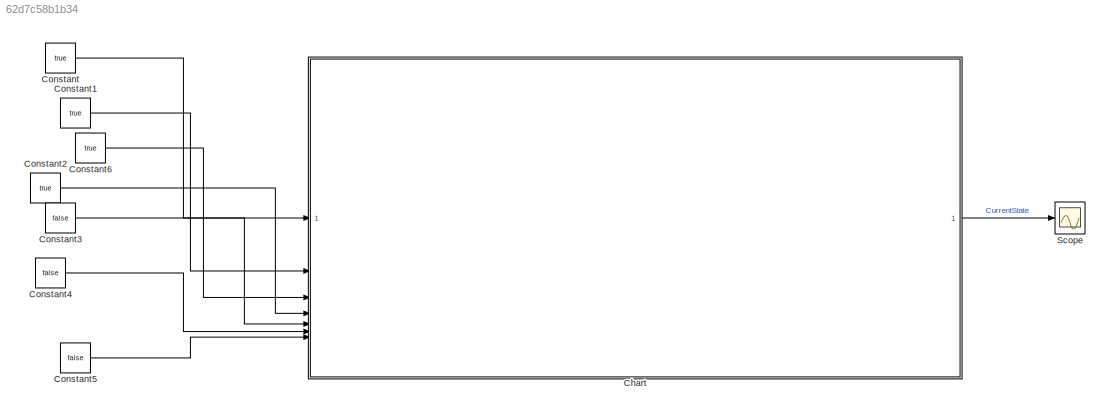
MODEL slx_62d7c58b1b34
KIND model
CONFIG AbsTol = auto
CONFIG EnableMultiTasking = off
CONFIG FixedStep = auto
CONFIG MaxStep = auto
CONFIG MinStep = auto
CONFIG RelTol = 1e-3
CONFIG SampleTimeConstraint = Unconstrained
CONFIG SolverName = VariableStepAuto
CONFIG StartTime = 0.0
CONFIG StopTime = 10.0
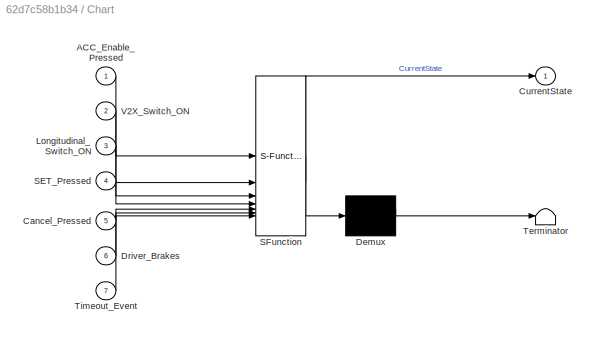
BLOCK [SubSystem] Chart
  ErrorFcn = Stateflow.Translate.translate
  PermitHierarchicalResolution = ExplicitOnly
  SFBlockType = Chart
  TreatAsAtomicUnit = on
BLOCK [Demux] Chart/ Demux 
  Outputs = 1
BLOCK [S-Function] Chart/ SFunction 
  EnableBusSupport = off
  FunctionName = sf_sfun
  PortCounts = [7 2]
  SFcnIsStateOwnerBlock = off
  SFunctionDeploymentMode = off
  Tag = Stateflow S-Function 3
BLOCK [Terminator] Chart/ Terminator 
BLOCK [Inport] Chart/ACC_Enable_Pressed
BLOCK [Inport] Chart/Cancel_Pressed
  Port = 5
BLOCK [Outport] Chart/CurrentState
BLOCK [Inport] Chart/Driver_Brakes
  Port = 6
BLOCK [Inport] Chart/Longitudinal_Switch_ON
  Port = 3
BLOCK [Inport] Chart/SET_Pressed
  Port = 4
BLOCK [Inport] Chart/Timeout_Event
  Port = 7
BLOCK [Inport] Chart/V2X_Switch_ON
  Port = 2
BLOCK [Constant] Constant
  Value = true
BLOCK [Constant] Constant1
  Value = true
BLOCK [Constant] Constant2
  Value = true
BLOCK [Constant] Constant3
  Value = false
BLOCK [Constant] Constant4
  Value = false
BLOCK [Constant] Constant5
  Value = false
BLOCK [Constant] Constant6
  Value = true
BLOCK [Scope] Scope
  Floating = off
  GraphicalSettings = {"GraphicalSettings":{"LegacySettings":true,"Style":{"Style":{"PlotType":"Auto"}}}}
  NumInputPorts = 1
  ScopeFrameLocation = window
  Visible = on
  WasSavedAsWebScope = on
  WindowPosition = [760.000000,7.000000,747.000000,904.000000,]
LINE Chart:1 -> Scope:1
LINE Constant1:1 -> Chart:2
LINE Constant2:1 -> Chart:4
LINE Constant3:1 -> Chart:5
LINE Constant4:1 -> Chart:6
LINE Constant5:1 -> Chart:7
LINE Constant6:1 -> Chart:3
LINE Constant:1 -> Chart:1
CHART Chart states=3 transitions=5
  STATE_LABEL 'CACC_Deactivated\n\nentry:\n   CurrentState = 0;'
  STATE_LABEL 'CACC_Active\n\nentry:\n   CurrentState = 2;'
  STATE_LABEL 'CACC_Standby\n\nentry:\n    CurrentState = 1;\n'
CHART  states=0 transitions=0
